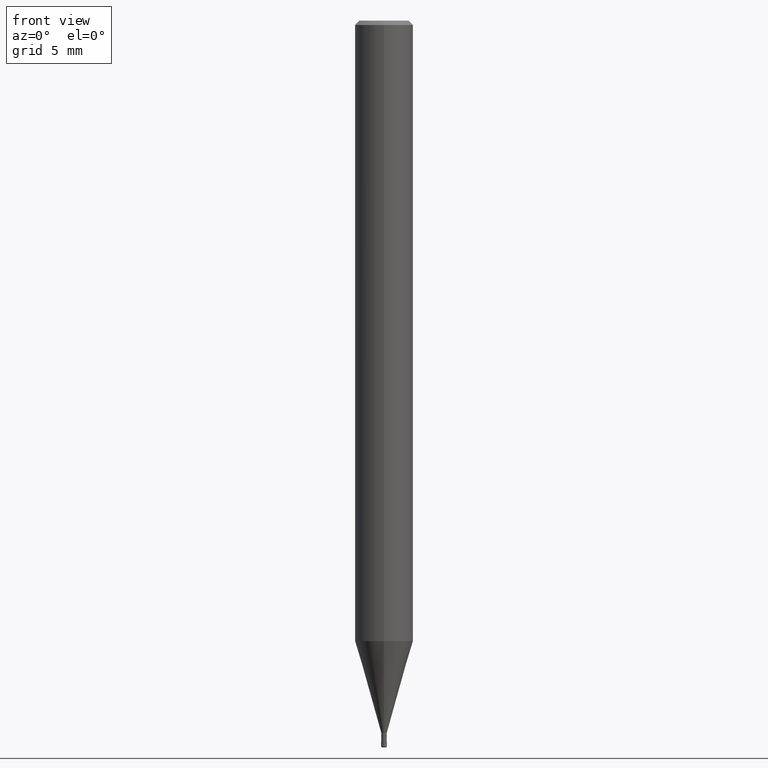
[diagram: clean part render]
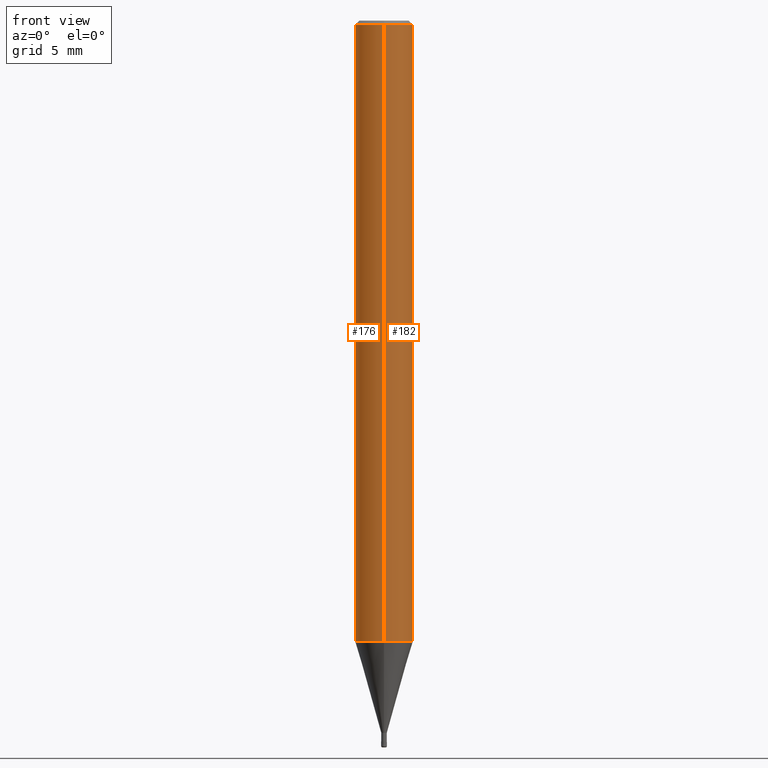
[diagram: same view with one multi-face feature highlighted, each face labeled with its STEP entity id]
A machine part, front view. The highlighted faces form ONE feature: a constant-radius fillet chain: 2 tangent blend faces with common blend radius 2 mm. The faces share edges in the B-rep.
Their STEP definitions:
[1] entity #176 (Cylinder):
#106=VERTEX_POINT('',#260);
#112=EDGE_CURVE('',#168,#204,#266,.T.);
#116=VERTEX_POINT('',#270);
#134=EDGE_CURVE('',#116,#204,#292,.T.);
#168=VERTEX_POINT('',#327);
#176=ADVANCED_FACE('',(#336),#337,.T.);
#196=EDGE_CURVE('',#106,#116,#362,.T.);
#204=VERTEX_POINT('',#372);
#206=EDGE_CURVE('',#168,#106,#374,.T.);
#260=CARTESIAN_POINT('',(2.44921270764475E-016,-2.0,-0.299999999999997));
#266=CIRCLE('',#433,2.0);
#270=CARTESIAN_POINT('',(0.0,2.0,-0.299999999999997));
#292=LINE('',#467,#468);
#327=CARTESIAN_POINT('',(2.44921270764475E-016,-2.0,-42.688));
#336=FACE_OUTER_BOUND('',#522,.T.);
#337=CYLINDRICAL_SURFACE('',#523,2.0);
#362=CIRCLE('',#553,2.0);
#372=CARTESIAN_POINT('',(0.0,2.0,-42.688));
#374=LINE('',#567,#568);
#433=AXIS2_PLACEMENT_3D('',#615,#616,#617);
#467=CARTESIAN_POINT('',(-2.44921270764475E-016,2.0,-21.494));
#468=VECTOR('',#656,1.0);
#522=EDGE_LOOP('',(#693,#694,#695,#696));
#523=AXIS2_PLACEMENT_3D('',#697,#698,#699);
#553=AXIS2_PLACEMENT_3D('',#745,#746,#747);
#567=CARTESIAN_POINT('',(2.44921270764475E-016,-2.0,-21.494));
#568=VECTOR('',#767,1.0);
#615=CARTESIAN_POINT('',(0.0,0.0,-42.688));
#616=DIRECTION('',(0.0,0.0,-1.0));
#617=DIRECTION('',(0.0,1.0,0.0));
#656=DIRECTION('',(0.0,0.0,-1.0));
#693=ORIENTED_EDGE('',*,*,#134,.T.);
#694=ORIENTED_EDGE('',*,*,#112,.F.);
#695=ORIENTED_EDGE('',*,*,#206,.T.);
#696=ORIENTED_EDGE('',*,*,#196,.T.);
#697=CARTESIAN_POINT('',(0.0,0.0,-21.494));
#698=DIRECTION('',(-0.0,-0.0,1.0));
#699=DIRECTION('',(0.0,1.0,0.0));
#745=CARTESIAN_POINT('',(0.0,0.0,-0.299999999999997));
#746=DIRECTION('',(0.0,0.0,-1.0));
#747=DIRECTION('',(0.0,1.0,0.0));
#767=DIRECTION('',(-0.0,-0.0,1.0));
[2] entity #182 (Cylinder):
#106=VERTEX_POINT('',#260);
#116=VERTEX_POINT('',#270);
#134=EDGE_CURVE('',#116,#204,#292,.T.);
#164=EDGE_CURVE('',#116,#106,#323,.T.);
#168=VERTEX_POINT('',#327);
#182=ADVANCED_FACE('',(#345),#346,.T.);
#204=VERTEX_POINT('',#372);
#206=EDGE_CURVE('',#168,#106,#374,.T.);
#210=EDGE_CURVE('',#204,#168,#378,.T.);
#260=CARTESIAN_POINT('',(2.44921270764475E-016,-2.0,-0.299999999999997));
#270=CARTESIAN_POINT('',(0.0,2.0,-0.299999999999997));
#292=LINE('',#467,#468);
#323=CIRCLE('',#509,2.0);
#327=CARTESIAN_POINT('',(2.44921270764475E-016,-2.0,-42.688));
#345=FACE_OUTER_BOUND('',#531,.T.);
#346=CYLINDRICAL_SURFACE('',#532,2.0);
#372=CARTESIAN_POINT('',(0.0,2.0,-42.688));
#374=LINE('',#567,#568);
#378=CIRCLE('',#573,2.0);
#467=CARTESIAN_POINT('',(-2.44921270764475E-016,2.0,-21.494));
#468=VECTOR('',#656,1.0);
#509=AXIS2_PLACEMENT_3D('',#681,#682,#683);
#531=EDGE_LOOP('',(#715,#716,#717,#718));
#532=AXIS2_PLACEMENT_3D('',#719,#720,#721);
#567=CARTESIAN_POINT('',(2.44921270764475E-016,-2.0,-21.494));
#568=VECTOR('',#767,1.0);
#573=AXIS2_PLACEMENT_3D('',#768,#769,#770);
#656=DIRECTION('',(0.0,0.0,-1.0));
#681=CARTESIAN_POINT('',(0.0,0.0,-0.299999999999997));
#682=DIRECTION('',(0.0,0.0,-1.0));
#683=DIRECTION('',(0.0,1.0,0.0));
#715=ORIENTED_EDGE('',*,*,#134,.F.);
#716=ORIENTED_EDGE('',*,*,#164,.T.);
#717=ORIENTED_EDGE('',*,*,#206,.F.);
#718=ORIENTED_EDGE('',*,*,#210,.F.);
#719=CARTESIAN_POINT('',(0.0,0.0,-21.494));
#720=DIRECTION('',(-0.0,-0.0,1.0));
#721=DIRECTION('',(0.0,1.0,0.0));
#767=DIRECTION('',(-0.0,-0.0,1.0));
#768=CARTESIAN_POINT('',(0.0,0.0,-42.688));
#769=DIRECTION('',(0.0,0.0,-1.0));
#770=DIRECTION('',(0.0,1.0,0.0));